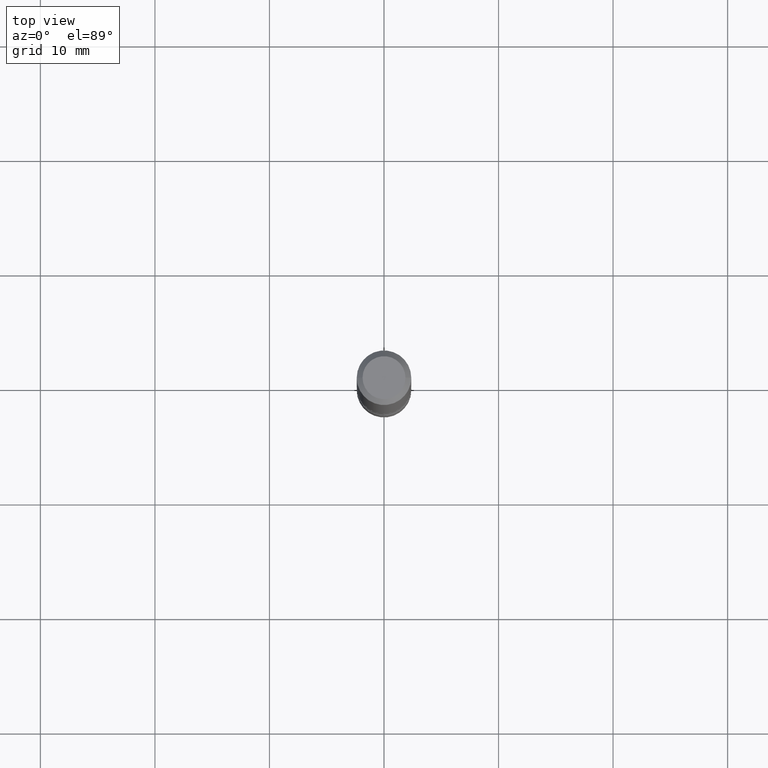
[diagram: clean part render]
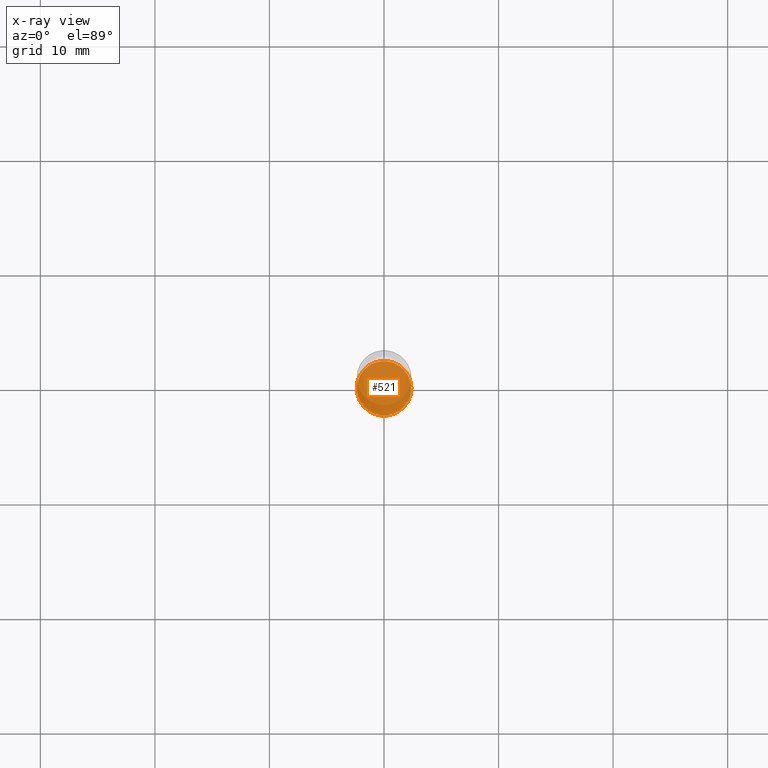
[diagram: x-ray — body ghosted, one internal face saturated and labeled with its STEP entity id]
A machine part, top view, then the same camera in x-ray: the body is ghosted and one INTERNAL B-rep face — a face not visible from any outside direction — is saturated and labeled: STEP entity #521.
In plain terms, the highlighted planar face has unit normal (0, -0, -1).
Its self-contained STEP definition (entity closure, byte-faithful):
#27 = VERTEX_POINT ( 'NONE', #139 ) ;
#45 = DIRECTION ( 'NONE',  ( -2.445468806185136597E-29, 3.491481338843145583E-15, 1.000000000000000000 ) ) ;
#76 = PLANE ( 'NONE',  #222 ) ;
#79 = DIRECTION ( 'NONE',  ( 2.438088387897960049E-29, -3.491481338843145188E-15, -1.000000000000000000 ) ) ;
#129 = CIRCLE ( 'NONE', #468, 0.09375000000000002776 ) ;
#139 = CARTESIAN_POINT ( 'NONE',  ( 0.09375000000000002776, -8.074050596074771916E-15, -2.125000000000000000 ) ) ;
#168 = FACE_OUTER_BOUND ( 'NONE', #523, .T. ) ;
#192 = ORIENTED_EDGE ( 'NONE', *, *, #478, .T. ) ;
#222 = AXIS2_PLACEMENT_3D ( 'NONE', #298, #79, #258 ) ;
#235 = ORIENTED_EDGE ( 'NONE', *, *, #278, .T. ) ;
#258 = DIRECTION ( 'NONE',  ( -1.000000000000000000, 6.982962677686265922E-15, -4.876176775795935793E-29 ) ) ;
#270 = VERTEX_POINT ( 'NONE', #282 ) ;
#278 = EDGE_CURVE ( 'NONE', #270, #27, #129, .T. ) ;
#281 = CIRCLE ( 'NONE', #327, 0.09375000000000002776 ) ;
#282 = CARTESIAN_POINT ( 'NONE',  ( -0.09375000000000002776, -7.355544561217034463E-15, -2.125000000000000000 ) ) ;
#298 = CARTESIAN_POINT ( 'NONE',  ( 8.726388948129611336E-30, -1.361158663068067946E-14, -2.125000000000000000 ) ) ;
#327 = AXIS2_PLACEMENT_3D ( 'NONE', #442, #45, #346 ) ;
#332 = DIRECTION ( 'NONE',  ( 1.000000000000000000, -6.982962677686270655E-15, 0.000000000000000000 ) ) ;
#346 = DIRECTION ( 'NONE',  ( 1.000000000000000000, -6.982962677686270655E-15, 0.000000000000000000 ) ) ;
#442 = CARTESIAN_POINT ( 'NONE',  ( 5.196621213143415268E-29, -7.419397845041685201E-15, -2.125000000000000000 ) ) ;
#468 = AXIS2_PLACEMENT_3D ( 'NONE', #553, #473, #332 ) ;
#473 = DIRECTION ( 'NONE',  ( -2.445468806185136597E-29, 3.491481338843145583E-15, 1.000000000000000000 ) ) ;
#478 = EDGE_CURVE ( 'NONE', #27, #270, #281, .T. ) ;
#521 = ADVANCED_FACE ( 'NONE', ( #168 ), #76, .F. ) ;
#523 = EDGE_LOOP ( 'NONE', ( #192, #235 ) ) ;
#553 = CARTESIAN_POINT ( 'NONE',  ( 5.196621213143415268E-29, -7.419397845041685201E-15, -2.125000000000000000 ) ) ;